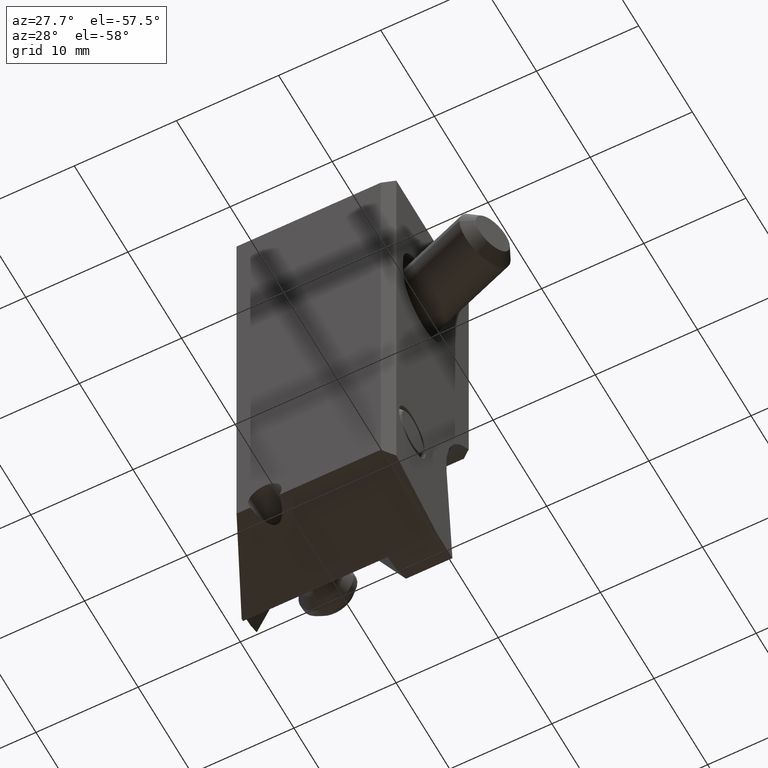
[diagram: clean part render]
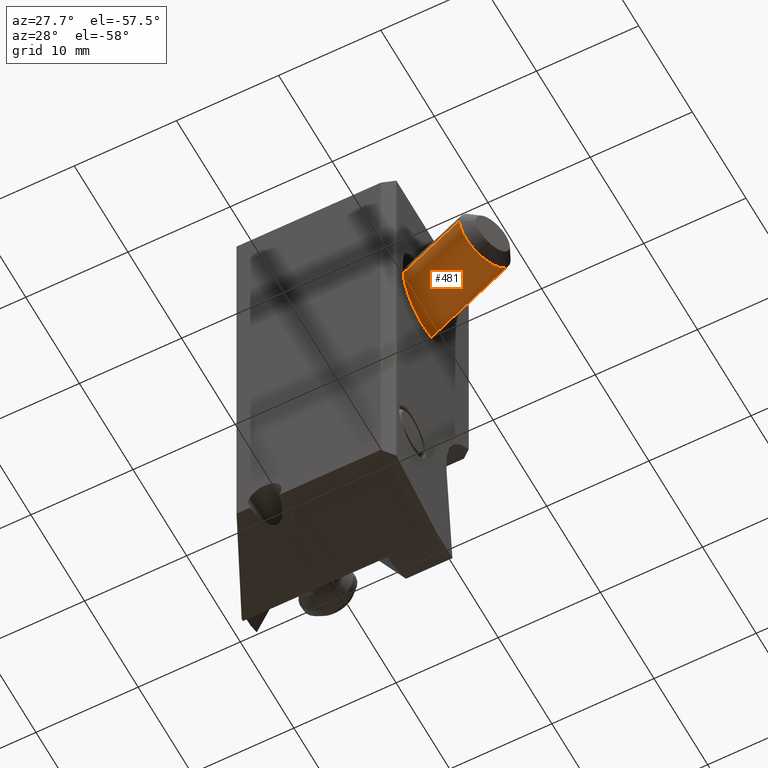
[diagram: same view with one face highlighted and labeled with its STEP entity id]
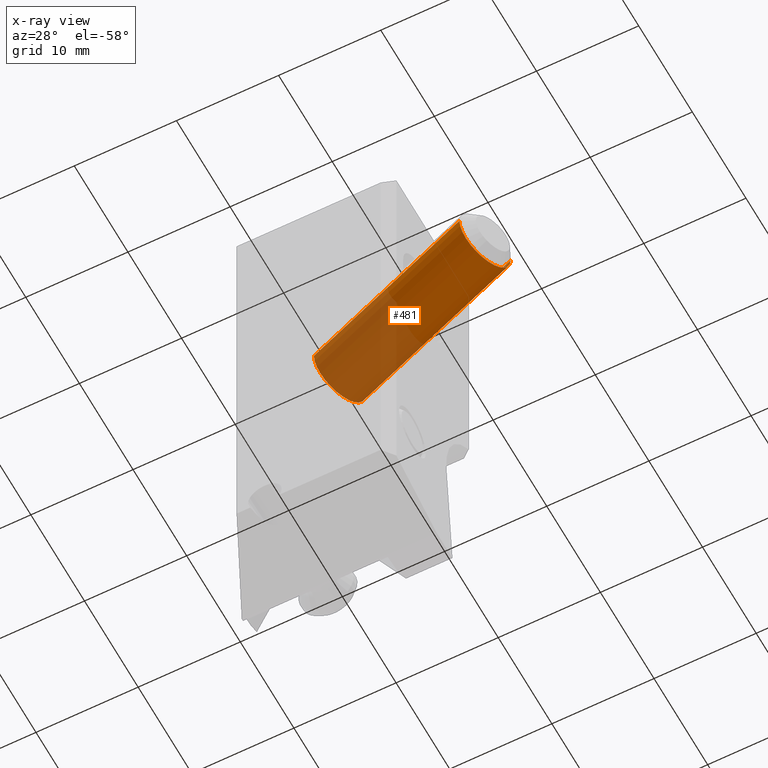
[diagram: x-ray of the same camera — body ghosted, the highlighted face saturated]
A machine part, auxiliary view. The second image highlights one B-rep face of the part: STEP entity #481.
The next image is the same camera in x-ray: the body ghosted, the highlighted face saturated — about 49% of this face is hidden behind the body in this view.
In plain terms, the highlighted cylindrical surface (edge-blend (fillet) strip) has radius 3 mm, axis along (0.9397, -0.342, 0).
Its self-contained STEP definition (entity closure, byte-faithful):
#217=CYLINDRICAL_SURFACE('',#2927,3.000000000054);
#342=CIRCLE('',#2920,3.000000000054);
#345=CIRCLE('',#2926,3.);
#481=ADVANCED_FACE('',(#660),#217,.T.);
#660=FACE_OUTER_BOUND('',#811,.T.);
#811=EDGE_LOOP('',(#1518,#1519,#1520,#1521));
#1518=ORIENTED_EDGE('',*,*,#2158,.F.);
#1519=ORIENTED_EDGE('',*,*,#2162,.F.);
#1520=ORIENTED_EDGE('',*,*,#2164,.T.);
#1521=ORIENTED_EDGE('',*,*,#2163,.F.);
#1803=VERTEX_POINT('',#5250);
#1804=VERTEX_POINT('',#5252);
#1805=VERTEX_POINT('',#5258);
#1806=VERTEX_POINT('',#5259);
#2158=EDGE_CURVE('',#1803,#1804,#342,.T.);
#2162=EDGE_CURVE('',#1806,#1803,#2347,.T.);
#2163=EDGE_CURVE('',#1804,#1805,#2348,.T.);
#2164=EDGE_CURVE('',#1806,#1805,#345,.T.);
#2347=LINE('',#5260,#2521);
#2348=LINE('',#5261,#2522);
#2521=VECTOR('',#3679,1.);
#2522=VECTOR('',#3680,1.);
#2920=AXIS2_PLACEMENT_3D('',#5251,#3668,#3669);
#2926=AXIS2_PLACEMENT_3D('',#5263,#3683,#3684);
#2927=AXIS2_PLACEMENT_3D('',#5264,#3685,#3686);
#3668=DIRECTION('',(0.939692620787022,-0.342020143322608,0.));
#3669=DIRECTION('',(-0.342020143322608,-0.939692620787022,0.));
#3679=DIRECTION('',(0.939692620786482,-0.342020143324093,0.));
#3680=DIRECTION('',(-0.939692620786514,0.342020143324005,0.));
#3683=DIRECTION('',(0.939692620786038,-0.342020143325314,0.));
#3684=DIRECTION('',(-0.342020143325314,-0.939692620786038,0.));
#3685=DIRECTION('',(0.939692620787022,-0.342020143322608,0.));
#3686=DIRECTION('',(0.342020143322608,0.939692620787022,0.));
#5250=CARTESIAN_POINT('',(6.466255089679,0.4539423027735,-12.));
#5251=CARTESIAN_POINT('',(7.492315519677,3.273020165197,-12.));
#5252=CARTESIAN_POINT('',(8.518375949656,6.09209802754,-12.));
#5258=CARTESIAN_POINT('',(-9.100860690099,12.50497571487,-12.));
#5259=CARTESIAN_POINT('',(-11.15298155007,6.866819990102,-12.));
#5260=CARTESIAN_POINT('',(-11.15298155007,6.866819990102,-12.));
#5261=CARTESIAN_POINT('',(8.518375949656,6.09209802754,-12.));
#5263=CARTESIAN_POINT('',(-10.12692112009,9.685897852475,-12.));
#5264=CARTESIAN_POINT('',(-10.47930585288,9.814155406245,-12.));